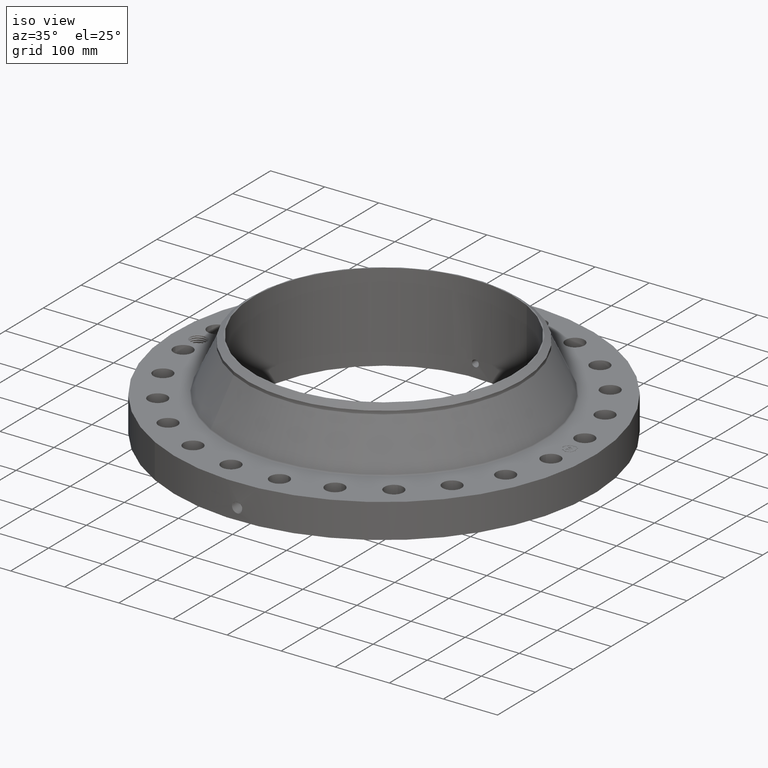
[diagram: clean part render]
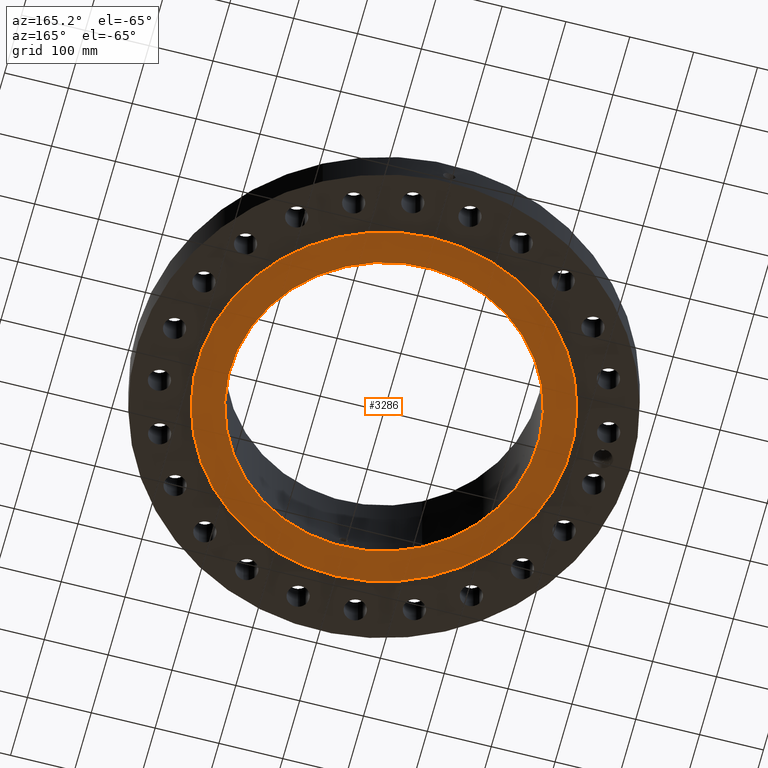
[diagram: tour spotlight — one face highlighted and labeled with its STEP entity id]
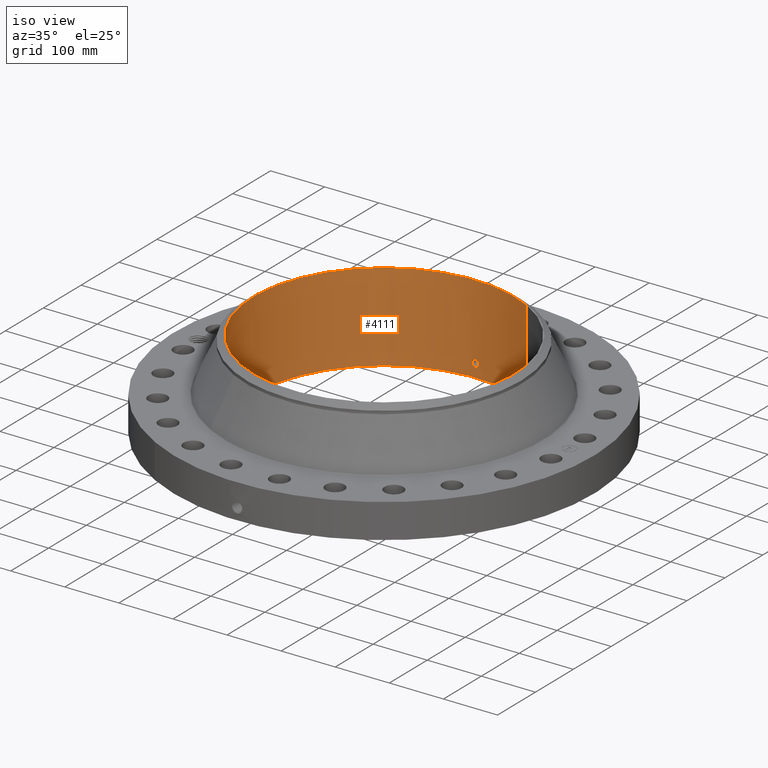
[diagram: tour spotlight — one face highlighted and labeled with its STEP entity id]
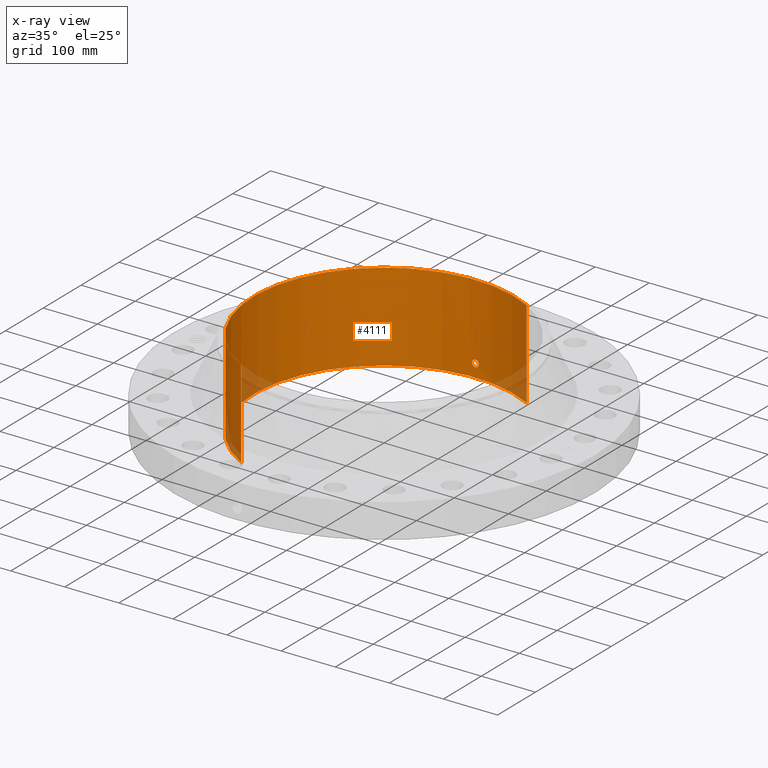
[diagram: x-ray of the same camera — body ghosted, this tour face saturated]
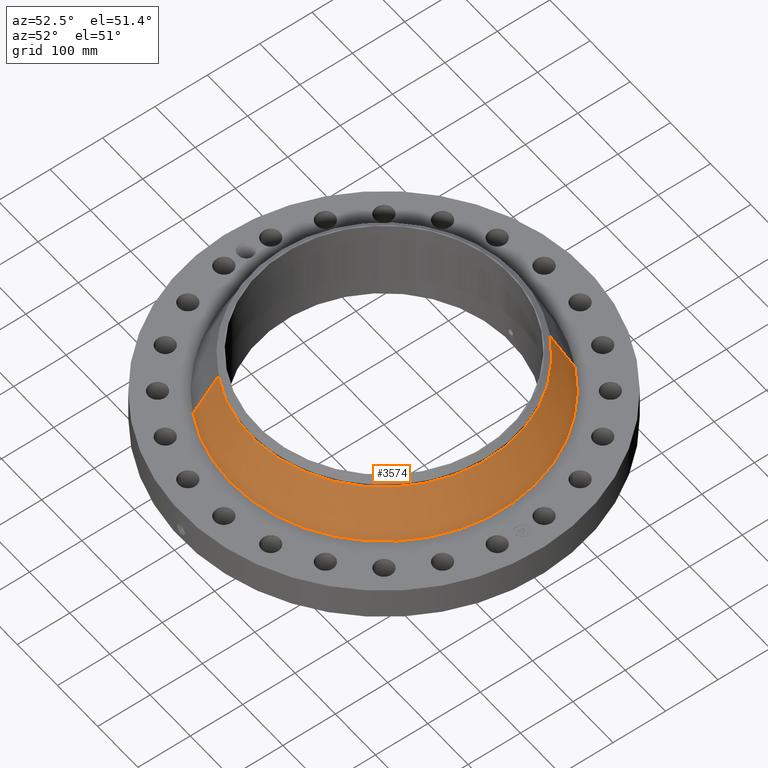
[diagram: tour spotlight — one face highlighted and labeled with its STEP entity id]
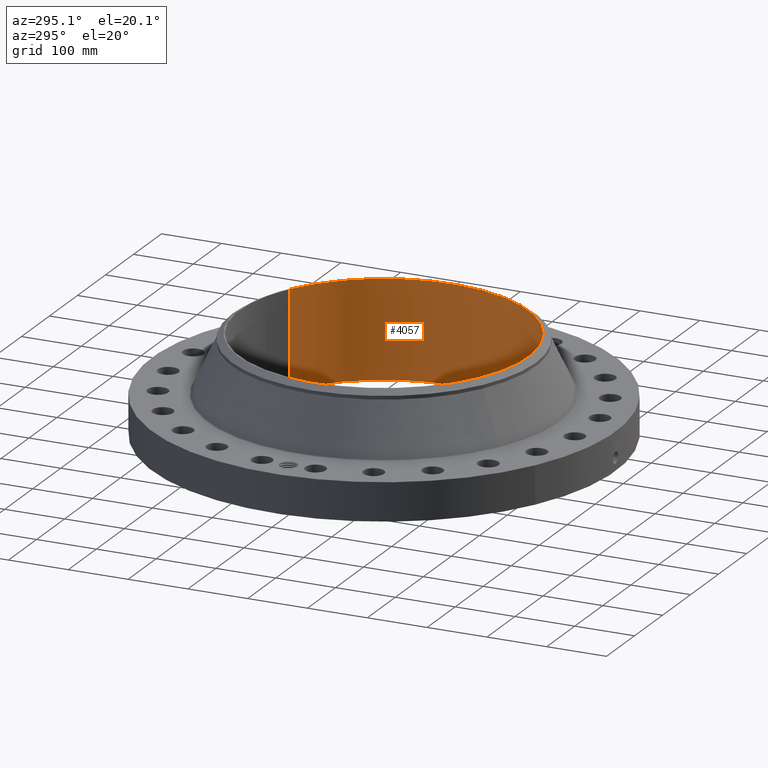
[diagram: tour spotlight — one face highlighted and labeled with its STEP entity id]
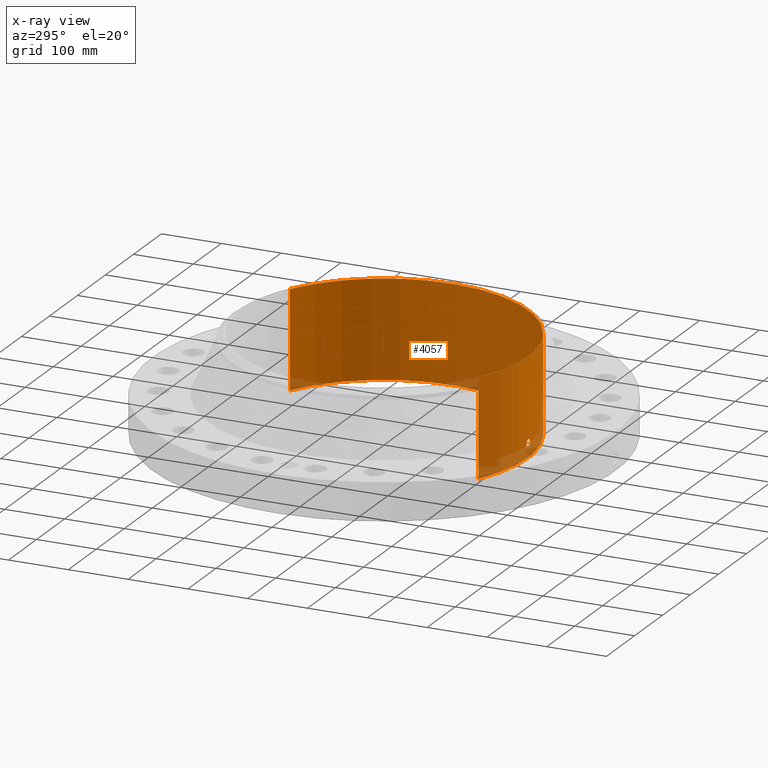
[diagram: x-ray of the same camera — body ghosted, this tour face saturated]
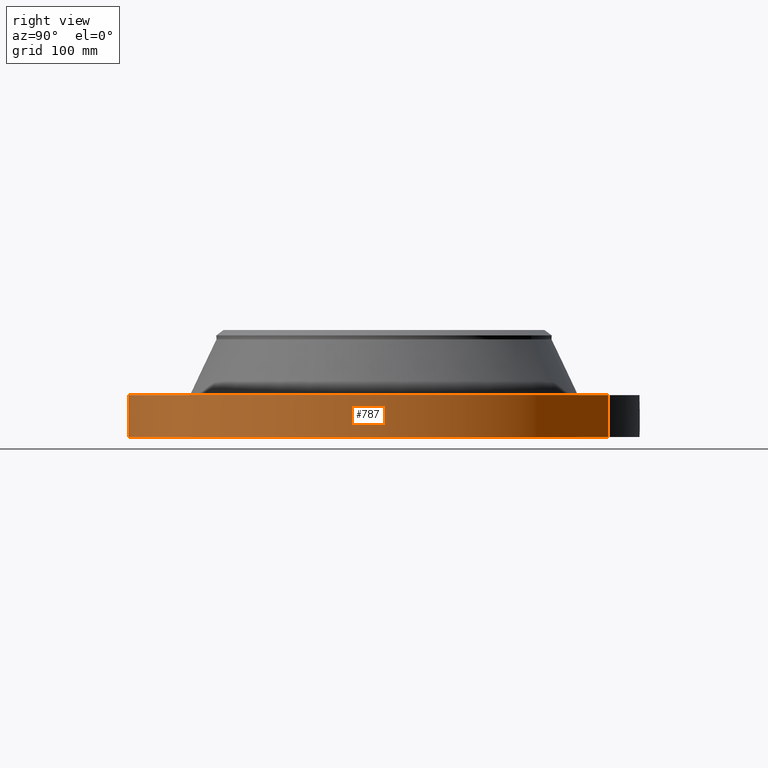
[diagram: tour spotlight — one face highlighted and labeled with its STEP entity id]
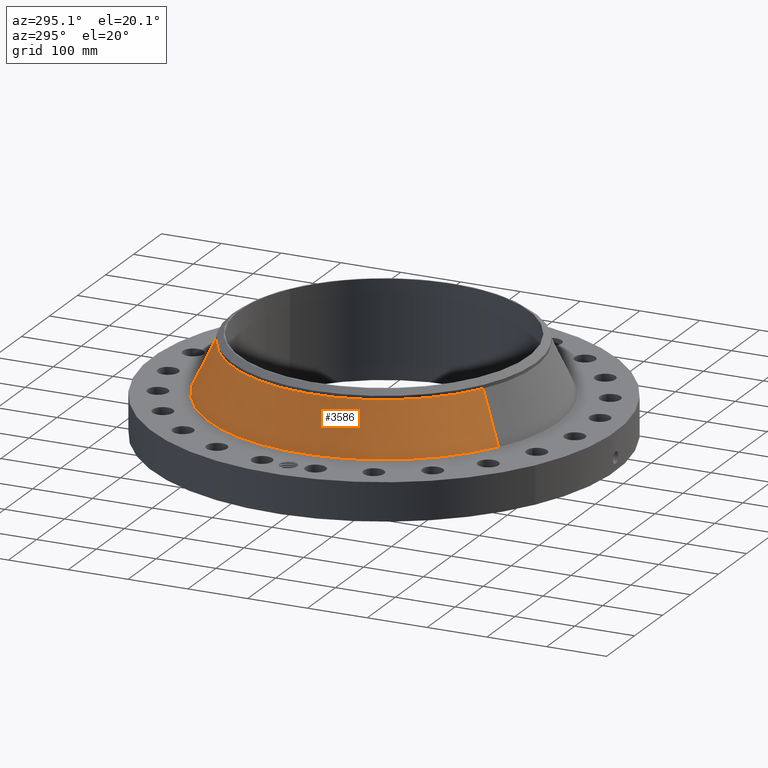
[diagram: tour spotlight — one face highlighted and labeled with its STEP entity id]
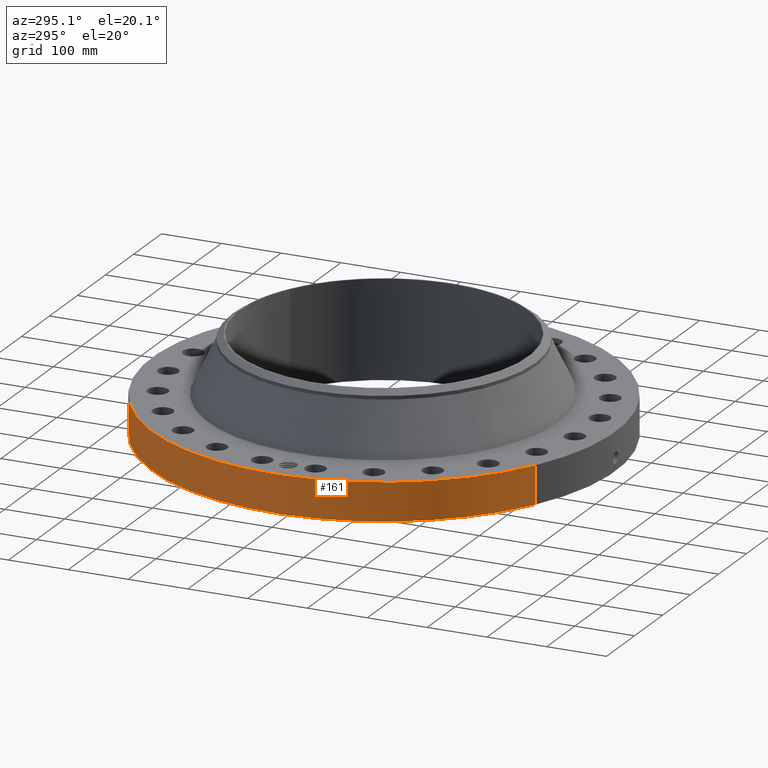
[diagram: tour spotlight — one face highlighted and labeled with its STEP entity id]
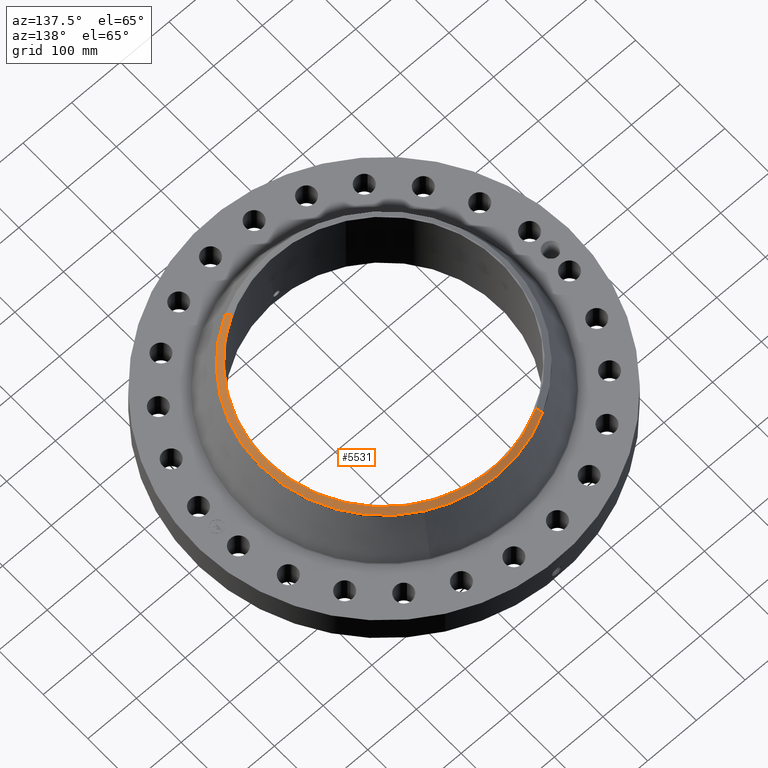
[diagram: tour spotlight — one face highlighted and labeled with its STEP entity id]
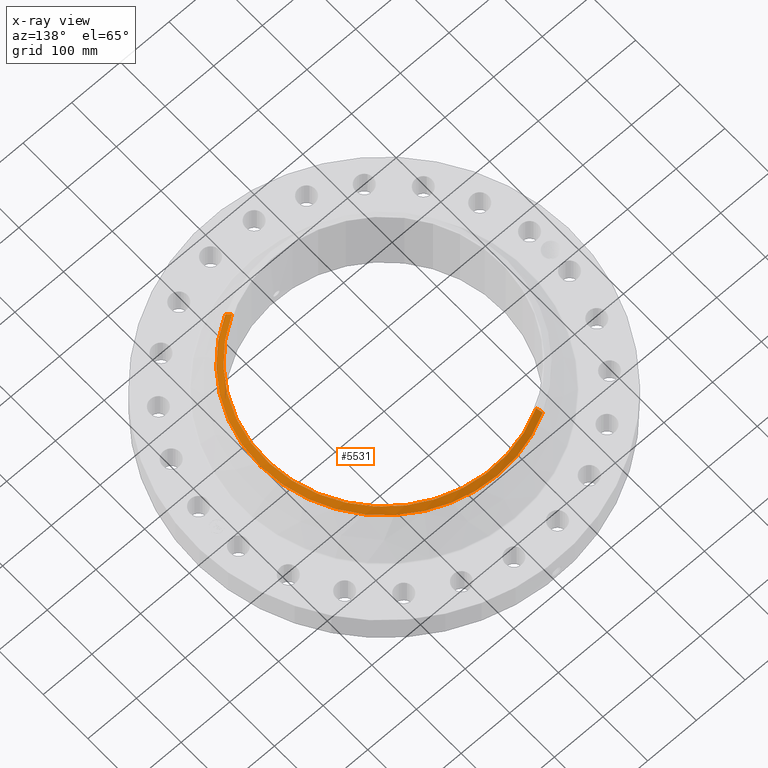
[diagram: x-ray of the same camera — body ghosted, this tour face saturated]
A machine part: a face-by-face anatomy tour. The part has 818 B-rep faces; the first image is the clean iso view, then the 8 largest visible faces are spotlighted one at a time (largest first), each with its STEP entity span.

Face 1 — auxiliary view, entity #3286. In plain terms, the highlighted planar face has unit normal (0, 0, -1).
Definition (entity closure, byte-faithful):
#1744=AXIS2_PLACEMENT_3D('Circle Axis2P3D',#1742,#1743,$) ;
#1770=AXIS2_PLACEMENT_3D('Circle Axis2P3D',#1768,#1769,$) ;
#3262=AXIS2_PLACEMENT_3D('Plane Axis2P3D',#3259,#3260,#3261) ;
#3270=AXIS2_PLACEMENT_3D('Circle Axis2P3D',#3268,#3269,$) ;
#3279=AXIS2_PLACEMENT_3D('Circle Axis2P3D',#3277,#3278,$) ;
#1742=CARTESIAN_POINT('Axis2P3D Location',(0.,0.,1.1189649382E-015)) ;
#1746=CARTESIAN_POINT('Vertex',(5.51339369397,10.0921994618,5.59482469102E-016)) ;
#1748=CARTESIAN_POINT('Vertex',(-5.51339369397,-10.0921994618,5.59482469102E-016)) ;
#1768=CARTESIAN_POINT('Axis2P3D Location',(0.,0.,1.1189649382E-015)) ;
#3259=CARTESIAN_POINT('Axis2P3D Location',(0.,9.50000000004,0.)) ;
#3268=CARTESIAN_POINT('Axis2P3D Location',(0.,0.,0.)) ;
#3272=CARTESIAN_POINT('Vertex',(4.55454261676,8.33703433799,-5.70672118484E-014)) ;
#3274=CARTESIAN_POINT('Vertex',(-4.55454261676,-8.33703433799,-5.70672118484E-014)) ;
#3277=CARTESIAN_POINT('Axis2P3D Location',(0.,0.,0.)) ;
#1743=DIRECTION('Axis2P3D Direction',(0.,0.,-0.0393700787402)) ;
#1769=DIRECTION('Axis2P3D Direction',(0.,0.,-0.0393700787402)) ;
#3260=DIRECTION('Axis2P3D Direction',(0.,0.,-0.0393700787402)) ;
#3261=DIRECTION('Axis2P3D XDirection',(0.0393700787402,0.,0.)) ;
#3269=DIRECTION('Axis2P3D Direction',(0.,0.,-0.0393700787402)) ;
#3278=DIRECTION('Axis2P3D Direction',(0.,0.,-0.0393700787402)) ;
#3265=ORIENTED_EDGE('',*,*,#1772,.T.) ;
#3266=ORIENTED_EDGE('',*,*,#1750,.T.) ;
#3283=ORIENTED_EDGE('',*,*,#3276,.F.) ;
#3284=ORIENTED_EDGE('',*,*,#3281,.F.) ;
#3285=FACE_BOUND('',#3282,.T.) ;
#3286=ADVANCED_FACE('PartBody',(#3267,#3285),#3263,.T.) ;
#1745=CIRCLE('generated circle',#1744,11.5) ;
#1771=CIRCLE('generated circle',#1770,11.5) ;
#3271=CIRCLE('generated circle',#3270,9.50000000004) ;
#3280=CIRCLE('generated circle',#3279,9.50000000004) ;
#1750=EDGE_CURVE('',#1747,#1749,#1745,.T.) ;
#1772=EDGE_CURVE('',#1749,#1747,#1771,.T.) ;
#3276=EDGE_CURVE('',#3273,#3275,#3271,.T.) ;
#3281=EDGE_CURVE('',#3275,#3273,#3280,.T.) ;
#3264=EDGE_LOOP('',(#3265,#3266)) ;
#3282=EDGE_LOOP('',(#3283,#3284)) ;
#3267=FACE_OUTER_BOUND('',#3264,.T.) ;
#3263=PLANE('',#3262) ;
#1747=VERTEX_POINT('',#1746) ;
#1749=VERTEX_POINT('',#1748) ;
#3273=VERTEX_POINT('',#3272) ;
#3275=VERTEX_POINT('',#3274) ;

Face 2 — iso view, entity #4111. An x-ray twin of the same camera follows (body ghosted, this face saturated) — the face is partly hidden behind the body. In plain terms, the highlighted cylindrical surface (partial cylindrical patch) has radius 241.3 mm, axis along (0, 0, -1).
Definition (entity closure, byte-faithful):
#3279=AXIS2_PLACEMENT_3D('Circle Axis2P3D',#3277,#3278,$) ;
#3988=AXIS2_PLACEMENT_3D('Cylinder Axis2P3D',#3985,#3986,#3987) ;
#4060=AXIS2_PLACEMENT_3D('Circle Axis2P3D',#4058,#4059,$) ;
#3272=CARTESIAN_POINT('Vertex',(4.55454261676,8.33703433799,-5.70672118484E-014)) ;
#3274=CARTESIAN_POINT('Vertex',(-4.55454261676,-8.33703433799,-5.70672118484E-014)) ;
#3277=CARTESIAN_POINT('Axis2P3D Location',(0.,0.,0.)) ;
#3985=CARTESIAN_POINT('Axis2P3D Location',(0.,0.,3.22000000001)) ;
#3994=CARTESIAN_POINT('Vertex',(4.55454261676,8.33703433799,6.44000000003)) ;
#3996=CARTESIAN_POINT('Vertex',(-4.55454261676,-8.33703433799,6.44000000003)) ;
#3999=CARTESIAN_POINT('Line Origine',(4.55454261676,8.33703433799,3.22000000001)) ;
#4004=CARTESIAN_POINT('Line Origine',(-4.55454261676,-8.33703433799,3.22000000001)) ;
#4058=CARTESIAN_POINT('Axis2P3D Location',(0.,0.,6.44000000003)) ;
#4070=CARTESIAN_POINT('Control Point',(0.219395640473,9.4974662702,1.05985638466)) ;
#4071=CARTESIAN_POINT('Control Point',(0.194442935999,9.49804268863,1.10553200382)) ;
#4072=CARTESIAN_POINT('Control Point',(0.157604874717,9.49881167245,1.14471210688)) ;
#4073=CARTESIAN_POINT('Control Point',(0.111106986346,9.49955955235,1.17324351808)) ;
#4074=CARTESIAN_POINT('Control Point',(0.0336717783172,9.50015458293,1.19588281264)) ;
#4075=CARTESIAN_POINT('Control Point',(-0.0446730370339,9.49994894621,1.18805610377)) ;
#4076=CARTESIAN_POINT('Control Point',(-0.0703033492336,9.49978931029,1.18204313534)) ;
#4077=CARTESIAN_POINT('Control Point',(-0.143960170574,9.49908388344,1.15420983012)) ;
#4078=CARTESIAN_POINT('Control Point',(-0.20324820544,9.49793246426,1.09949287888)) ;
#4079=CARTESIAN_POINT('Control Point',(-0.232212656333,9.4971773108,1.0532520476)) ;
#4080=CARTESIAN_POINT('Control Point',(-0.25584102018,9.49655659169,0.975105963714)) ;
#4081=CARTESIAN_POINT('Control Point',(-0.248281876038,9.49675500837,0.895743006143)) ;
#4082=CARTESIAN_POINT('Control Point',(-0.24204812098,9.49692100883,0.86918196536)) ;
#4083=CARTESIAN_POINT('Control Point',(-0.23231491871,9.4971678292,0.843792195537)) ;
#4084=CARTESIAN_POINT('Control Point',(-0.219395640473,9.4974662702,0.820143615352)) ;
#4085=CARTESIAN_POINT('Vertex',(0.219395640473,9.4974662702,1.05985638466)) ;
#4087=CARTESIAN_POINT('Vertex',(-0.219395640473,9.4974662702,0.820143615352)) ;
#4091=CARTESIAN_POINT('Control Point',(-0.219395640473,9.4974662702,0.820143615352)) ;
#4092=CARTESIAN_POINT('Control Point',(-0.194442935986,9.49804268863,0.774467996164)) ;
#4093=CARTESIAN_POINT('Control Point',(-0.157604874679,9.49881167245,0.735287893082)) ;
#4094=CARTESIAN_POINT('Control Point',(-0.111106986401,9.49955955235,0.706756481942)) ;
#4095=CARTESIAN_POINT('Control Point',(-0.0336717783396,9.50015458293,0.684117187368)) ;
#4096=CARTESIAN_POINT('Control Point',(0.0446730370458,9.49994894621,0.691943896236)) ;
#4097=CARTESIAN_POINT('Control Point',(0.0703033492185,9.49978931029,0.697956864664)) ;
#4098=CARTESIAN_POINT('Control Point',(0.143960170567,9.49908388344,0.725790169882)) ;
#4099=CARTESIAN_POINT('Control Point',(0.203248205438,9.49793246426,0.780507121124)) ;
#4100=CARTESIAN_POINT('Control Point',(0.232212656332,9.4971773108,0.826747952405)) ;
#4101=CARTESIAN_POINT('Control Point',(0.255841020167,9.49655659169,0.904894036251)) ;
#4102=CARTESIAN_POINT('Control Point',(0.248281876046,9.49675500837,0.98425699378)) ;
#4103=CARTESIAN_POINT('Control Point',(0.242048120951,9.49692100883,1.01081803472)) ;
#4104=CARTESIAN_POINT('Control Point',(0.23231491869,9.49716782921,1.03620780451)) ;
#4105=CARTESIAN_POINT('Control Point',(0.219395640473,9.4974662702,1.05985638466)) ;
#3278=DIRECTION('Axis2P3D Direction',(0.,0.,-0.0393700787402)) ;
#3986=DIRECTION('Axis2P3D Direction',(0.,0.,-0.0393700787402)) ;
#3987=DIRECTION('Axis2P3D XDirection',(-0.0188750212049,-0.0345504945626,0.)) ;
#4000=DIRECTION('Vector Direction',(0.,0.,-0.0393700787402)) ;
#4005=DIRECTION('Vector Direction',(0.,0.,-0.0393700787402)) ;
#4059=DIRECTION('Axis2P3D Direction',(0.,0.,-0.0393700787402)) ;
#4001=VECTOR('Line Direction',#4000,0.0393700787402) ;
#4006=VECTOR('Line Direction',#4005,0.0393700787402) ;
#4064=ORIENTED_EDGE('',*,*,#4062,.F.) ;
#4065=ORIENTED_EDGE('',*,*,#4008,.T.) ;
#4066=ORIENTED_EDGE('',*,*,#3281,.T.) ;
#4067=ORIENTED_EDGE('',*,*,#4003,.F.) ;
#4108=ORIENTED_EDGE('',*,*,#4089,.F.) ;
#4109=ORIENTED_EDGE('',*,*,#4106,.F.) ;
#4110=FACE_BOUND('',#4107,.T.) ;
#4111=ADVANCED_FACE('PartBody',(#4068,#4110),#3989,.F.) ;
#4069=B_SPLINE_CURVE_WITH_KNOTS('',5,(#4070,#4071,#4072,#4073,#4074,#4075,#4076,#4077,#4078,#4079,#4080,#4081,#4082,#4083,#4084),.UNSPECIFIED.,.F.,.U.,(6,3,3,3,6),(0.,9.34849735453,14.022916041,23.372956192,28.2131465022),.UNSPECIFIED.) ;
#4090=B_SPLINE_CURVE_WITH_KNOTS('',5,(#4091,#4092,#4093,#4094,#4095,#4096,#4097,#4098,#4099,#4100,#4101,#4102,#4103,#4104,#4105),.UNSPECIFIED.,.F.,.U.,(6,3,3,3,6),(0.,9.34849735935,14.022916047,23.3729561979,28.2131465009),.UNSPECIFIED.) ;
#3280=CIRCLE('generated circle',#3279,9.50000000004) ;
#4061=CIRCLE('generated circle',#4060,9.50000000004) ;
#3989=CYLINDRICAL_SURFACE('generated cylinder',#3988,9.50000000004) ;
#3281=EDGE_CURVE('',#3275,#3273,#3280,.T.) ;
#4003=EDGE_CURVE('',#3995,#3273,#4002,.T.) ;
#4008=EDGE_CURVE('',#3997,#3275,#4007,.T.) ;
#4062=EDGE_CURVE('',#3997,#3995,#4061,.T.) ;
#4089=EDGE_CURVE('',#4086,#4088,#4069,.T.) ;
#4106=EDGE_CURVE('',#4088,#4086,#4090,.T.) ;
#4063=EDGE_LOOP('',(#4064,#4065,#4066,#4067)) ;
#4107=EDGE_LOOP('',(#4108,#4109)) ;
#4068=FACE_OUTER_BOUND('',#4063,.T.) ;
#4002=LINE('Line',#3999,#4001) ;
#4007=LINE('Line',#4004,#4006) ;
#3273=VERTEX_POINT('',#3272) ;
#3275=VERTEX_POINT('',#3274) ;
#3995=VERTEX_POINT('',#3994) ;
#3997=VERTEX_POINT('',#3996) ;
#4086=VERTEX_POINT('',#4085) ;
#4088=VERTEX_POINT('',#4087) ;

Face 3 — auxiliary view, entity #3574. In plain terms, the highlighted conical surface has half-angle 25.164 deg.
Definition (entity closure, byte-faithful):
#2853=AXIS2_PLACEMENT_3D('Circle Axis2P3D',#2851,#2852,$) ;
#3547=AXIS2_PLACEMENT_3D('Cone Axis2P3D',#3544,#3545,#3546) ;
#3558=AXIS2_PLACEMENT_3D('Circle Axis2P3D',#3556,#3557,$) ;
#2848=CARTESIAN_POINT('Vertex',(5.52662377677,10.1164169659,2.62897412282)) ;
#2851=CARTESIAN_POINT('Axis2P3D Location',(0.,0.,2.62897412282)) ;
#2855=CARTESIAN_POINT('Vertex',(-5.52662377677,-10.1164169659,2.62897412282)) ;
#3544=CARTESIAN_POINT('Axis2P3D Location',(0.,0.,5.88053548147)) ;
#3549=CARTESIAN_POINT('Line Origine',(5.16043958142,9.44612129242,4.25475480215)) ;
#3553=CARTESIAN_POINT('Vertex',(4.79425538606,8.77582561894,5.88053548147)) ;
#3556=CARTESIAN_POINT('Axis2P3D Location',(0.,0.,5.88053548147)) ;
#3560=CARTESIAN_POINT('Vertex',(-4.79425538606,-8.77582561894,5.88053548147)) ;
#3563=CARTESIAN_POINT('Line Origine',(-5.16043958142,-9.44612129242,4.25475480215)) ;
#2852=DIRECTION('Axis2P3D Direction',(0.,0.,-0.0393700787402)) ;
#3545=DIRECTION('Axis2P3D Direction',(0.,0.,-0.0393700787402)) ;
#3546=DIRECTION('Axis2P3D XDirection',(-0.0188750212049,-0.0345504945626,0.)) ;
#3550=DIRECTION('Vector Direction',(0.00802595428238,0.0146914107689,-0.0356335460975)) ;
#3557=DIRECTION('Axis2P3D Direction',(0.,0.,-0.0393700787402)) ;
#3564=DIRECTION('Vector Direction',(-0.00802595428238,-0.0146914107689,-0.0356335460975)) ;
#3551=VECTOR('Line Direction',#3550,0.0393700787402) ;
#3565=VECTOR('Line Direction',#3564,0.0393700787402) ;
#3569=ORIENTED_EDGE('',*,*,#2857,.F.) ;
#3570=ORIENTED_EDGE('',*,*,#3555,.T.) ;
#3571=ORIENTED_EDGE('',*,*,#3562,.T.) ;
#3572=ORIENTED_EDGE('',*,*,#3567,.F.) ;
#3574=ADVANCED_FACE('PartBody',(#3573),#3548,.T.) ;
#2854=CIRCLE('generated circle',#2853,11.5275956989) ;
#3559=CIRCLE('generated circle',#3558,10.) ;
#3548=CONICAL_SURFACE('Cone',#3547,10.,0.439200127838) ;
#2857=EDGE_CURVE('',#2849,#2856,#2854,.T.) ;
#3555=EDGE_CURVE('',#2849,#3554,#3552,.F.) ;
#3562=EDGE_CURVE('',#3554,#3561,#3559,.T.) ;
#3567=EDGE_CURVE('',#2856,#3561,#3566,.F.) ;
#3568=EDGE_LOOP('',(#3569,#3570,#3571,#3572)) ;
#3573=FACE_OUTER_BOUND('',#3568,.T.) ;
#3552=LINE('Line',#3549,#3551) ;
#3566=LINE('Line',#3563,#3565) ;
#2849=VERTEX_POINT('',#2848) ;
#2856=VERTEX_POINT('',#2855) ;
#3554=VERTEX_POINT('',#3553) ;
#3561=VERTEX_POINT('',#3560) ;

Face 4 — auxiliary view, entity #4057. An x-ray twin of the same camera follows (body ghosted, this face saturated) — the face is partly hidden behind the body. In plain terms, the highlighted cylindrical surface (partial cylindrical patch) has radius 241.3 mm, axis along (0, 0, -1).
Definition (entity closure, byte-faithful):
#3270=AXIS2_PLACEMENT_3D('Circle Axis2P3D',#3268,#3269,$) ;
#3988=AXIS2_PLACEMENT_3D('Cylinder Axis2P3D',#3985,#3986,#3987) ;
#3992=AXIS2_PLACEMENT_3D('Circle Axis2P3D',#3990,#3991,$) ;
#3268=CARTESIAN_POINT('Axis2P3D Location',(0.,0.,0.)) ;
#3272=CARTESIAN_POINT('Vertex',(4.55454261676,8.33703433799,-5.70672118484E-014)) ;
#3274=CARTESIAN_POINT('Vertex',(-4.55454261676,-8.33703433799,-5.70672118484E-014)) ;
#3985=CARTESIAN_POINT('Axis2P3D Location',(0.,0.,3.22000000001)) ;
#3990=CARTESIAN_POINT('Axis2P3D Location',(0.,0.,6.44000000003)) ;
#3994=CARTESIAN_POINT('Vertex',(4.55454261676,8.33703433799,6.44000000003)) ;
#3996=CARTESIAN_POINT('Vertex',(-4.55454261676,-8.33703433799,6.44000000003)) ;
#3999=CARTESIAN_POINT('Line Origine',(4.55454261676,8.33703433799,3.22000000001)) ;
#4004=CARTESIAN_POINT('Line Origine',(-4.55454261676,-8.33703433799,3.22000000001)) ;
#4016=CARTESIAN_POINT('Control Point',(0.219395640473,-9.4974662702,0.820143615352)) ;
#4017=CARTESIAN_POINT('Control Point',(0.194442935972,-9.49804268863,0.774467996138)) ;
#4018=CARTESIAN_POINT('Control Point',(0.157604874637,-9.49881167245,0.735287893038)) ;
#4019=CARTESIAN_POINT('Control Point',(0.111106986342,-9.49955955236,0.706756481904)) ;
#4020=CARTESIAN_POINT('Control Point',(0.0336717782563,-9.50015458293,0.684117187352)) ;
#4021=CARTESIAN_POINT('Control Point',(-0.0446730371378,-9.49994894621,0.691943896255)) ;
#4022=CARTESIAN_POINT('Control Point',(-0.0703033493734,-9.49978931029,0.697956864711)) ;
#4023=CARTESIAN_POINT('Control Point',(-0.143960170671,-9.49908388343,0.725790169961)) ;
#4024=CARTESIAN_POINT('Control Point',(-0.203248205492,-9.49793246426,0.780507121202)) ;
#4025=CARTESIAN_POINT('Control Point',(-0.2322126564,-9.49717731079,0.826747952558)) ;
#4026=CARTESIAN_POINT('Control Point',(-0.255841020182,-9.49655659169,0.904894036394)) ;
#4027=CARTESIAN_POINT('Control Point',(-0.248281876025,-9.49675500838,0.984256993896)) ;
#4028=CARTESIAN_POINT('Control Point',(-0.242048120947,-9.49692100883,1.01081803473)) ;
#4029=CARTESIAN_POINT('Control Point',(-0.232314918688,-9.49716782921,1.03620780451)) ;
#4030=CARTESIAN_POINT('Control Point',(-0.219395640473,-9.4974662702,1.05985638466)) ;
#4031=CARTESIAN_POINT('Vertex',(0.219395640473,-9.4974662702,0.820143615352)) ;
#4033=CARTESIAN_POINT('Vertex',(-0.219395640473,-9.4974662702,1.05985638466)) ;
#4037=CARTESIAN_POINT('Control Point',(-0.219395640473,-9.4974662702,1.05985638466)) ;
#4038=CARTESIAN_POINT('Control Point',(-0.194442935972,-9.49804268863,1.10553200387)) ;
#4039=CARTESIAN_POINT('Control Point',(-0.157604874637,-9.49881167245,1.14471210697)) ;
#4040=CARTESIAN_POINT('Control Point',(-0.111106986342,-9.49955955236,1.1732435181)) ;
#4041=CARTESIAN_POINT('Control Point',(-0.0336717782525,-9.50015458293,1.19588281266)) ;
#4042=CARTESIAN_POINT('Control Point',(0.0446730371464,-9.49994894621,1.18805610375)) ;
#4043=CARTESIAN_POINT('Control Point',(0.0703033493635,-9.49978931029,1.1820431353)) ;
#4044=CARTESIAN_POINT('Control Point',(0.143960170739,-9.49908388343,1.15420983002)) ;
#4045=CARTESIAN_POINT('Control Point',(0.203248205608,-9.49793246426,1.0994928787)) ;
#4046=CARTESIAN_POINT('Control Point',(0.232212656355,-9.49717731079,1.0532520476)) ;
#4047=CARTESIAN_POINT('Control Point',(0.255841020188,-9.49655659169,0.975105963691)) ;
#4048=CARTESIAN_POINT('Control Point',(0.248281876025,-9.49675500838,0.895743006112)) ;
#4049=CARTESIAN_POINT('Control Point',(0.242048120947,-9.49692100883,0.869181965274)) ;
#4050=CARTESIAN_POINT('Control Point',(0.232314918688,-9.49716782921,0.843792195497)) ;
#4051=CARTESIAN_POINT('Control Point',(0.219395640473,-9.4974662702,0.820143615352)) ;
#3269=DIRECTION('Axis2P3D Direction',(0.,0.,-0.0393700787402)) ;
#3986=DIRECTION('Axis2P3D Direction',(0.,0.,-0.0393700787402)) ;
#3987=DIRECTION('Axis2P3D XDirection',(-0.0188750212049,-0.0345504945626,0.)) ;
#3991=DIRECTION('Axis2P3D Direction',(0.,0.,-0.0393700787402)) ;
#4000=DIRECTION('Vector Direction',(0.,0.,-0.0393700787402)) ;
#4005=DIRECTION('Vector Direction',(0.,0.,-0.0393700787402)) ;
#4001=VECTOR('Line Direction',#4000,0.0393700787402) ;
#4006=VECTOR('Line Direction',#4005,0.0393700787402) ;
#4010=ORIENTED_EDGE('',*,*,#3998,.F.) ;
#4011=ORIENTED_EDGE('',*,*,#4003,.T.) ;
#4012=ORIENTED_EDGE('',*,*,#3276,.T.) ;
#4013=ORIENTED_EDGE('',*,*,#4008,.F.) ;
#4054=ORIENTED_EDGE('',*,*,#4035,.F.) ;
#4055=ORIENTED_EDGE('',*,*,#4052,.F.) ;
#4056=FACE_BOUND('',#4053,.T.) ;
#4057=ADVANCED_FACE('PartBody',(#4014,#4056),#3989,.F.) ;
#4015=B_SPLINE_CURVE_WITH_KNOTS('',5,(#4016,#4017,#4018,#4019,#4020,#4021,#4022,#4023,#4024,#4025,#4026,#4027,#4028,#4029,#4030),.UNSPECIFIED.,.F.,.U.,(6,3,3,3,6),(0.,9.3484973647,14.0229160493,23.372956197,28.213146499),.UNSPECIFIED.) ;
#4036=B_SPLINE_CURVE_WITH_KNOTS('',5,(#4037,#4038,#4039,#4040,#4041,#4042,#4043,#4044,#4045,#4046,#4047,#4048,#4049,#4050,#4051),.UNSPECIFIED.,.F.,.U.,(6,3,3,3,6),(0.,9.34849736466,14.0229160502,23.3729562116,28.2131465137),.UNSPECIFIED.) ;
#3271=CIRCLE('generated circle',#3270,9.50000000004) ;
#3993=CIRCLE('generated circle',#3992,9.50000000004) ;
#3989=CYLINDRICAL_SURFACE('generated cylinder',#3988,9.50000000004) ;
#3276=EDGE_CURVE('',#3273,#3275,#3271,.T.) ;
#3998=EDGE_CURVE('',#3995,#3997,#3993,.T.) ;
#4003=EDGE_CURVE('',#3995,#3273,#4002,.T.) ;
#4008=EDGE_CURVE('',#3997,#3275,#4007,.T.) ;
#4035=EDGE_CURVE('',#4032,#4034,#4015,.T.) ;
#4052=EDGE_CURVE('',#4034,#4032,#4036,.T.) ;
#4009=EDGE_LOOP('',(#4010,#4011,#4012,#4013)) ;
#4053=EDGE_LOOP('',(#4054,#4055)) ;
#4014=FACE_OUTER_BOUND('',#4009,.T.) ;
#4002=LINE('Line',#3999,#4001) ;
#4007=LINE('Line',#4004,#4006) ;
#3273=VERTEX_POINT('',#3272) ;
#3275=VERTEX_POINT('',#3274) ;
#3995=VERTEX_POINT('',#3994) ;
#3997=VERTEX_POINT('',#3996) ;
#4032=VERTEX_POINT('',#4031) ;
#4034=VERTEX_POINT('',#4033) ;

Face 5 — right view, entity #787. In plain terms, the highlighted cylindrical surface (partial cylindrical patch) has radius 387.35 mm, axis along (0, 0, -1).
Definition (entity closure, byte-faithful):
#38=AXIS2_PLACEMENT_3D('Cylinder Axis2P3D',#35,#36,#37) ;
#169=AXIS2_PLACEMENT_3D('Circle Axis2P3D',#167,#168,$) ;
#691=AXIS2_PLACEMENT_3D('Circle Axis2P3D',#689,#690,$) ;
#35=CARTESIAN_POINT('Axis2P3D Location',(0.,0.,3.22000000001)) ;
#44=CARTESIAN_POINT('Vertex',(-7.31123946374,-13.3831340689,0.0600000000002)) ;
#46=CARTESIAN_POINT('Vertex',(7.31123946374,13.3831340689,0.0600000000002)) ;
#49=CARTESIAN_POINT('Line Origine',(-7.31123946374,-13.3831340689,1.31000000001)) ;
#53=CARTESIAN_POINT('Vertex',(-7.31123946374,-13.3831340689,2.56000000001)) ;
#60=CARTESIAN_POINT('Vertex',(7.31123946374,13.3831340689,2.56000000001)) ;
#63=CARTESIAN_POINT('Line Origine',(7.31123946374,13.3831340689,1.31000000001)) ;
#167=CARTESIAN_POINT('Axis2P3D Location',(0.,0.,0.0600000000002)) ;
#689=CARTESIAN_POINT('Axis2P3D Location',(0.,0.,2.56000000001)) ;
#701=CARTESIAN_POINT('Control Point',(0.000716049766516,-15.2499999833,1.29411846129)) ;
#702=CARTESIAN_POINT('Control Point',(0.0189701072577,-15.2499991261,1.29408159437)) ;
#703=CARTESIAN_POINT('Control Point',(0.0372209751349,-15.2499652355,1.29262936671)) ;
#704=CARTESIAN_POINT('Control Point',(0.0552509399649,-15.2498999123,1.28977927812)) ;
#705=CARTESIAN_POINT('Vertex',(0.000715697200082,-15.2499999833,1.29411851055)) ;
#707=CARTESIAN_POINT('Vertex',(0.055242138106,-15.2499001965,1.28978068759)) ;
#711=CARTESIAN_POINT('Control Point',(0.0552420427631,-15.2498999445,1.28978014022)) ;
#712=CARTESIAN_POINT('Control Point',(0.0956981569489,-15.2497533942,1.28536268072)) ;
#713=CARTESIAN_POINT('Control Point',(0.13551652469,-15.2494419834,1.27358724127)) ;
#714=CARTESIAN_POINT('Control Point',(0.172195687342,-15.2490277935,1.25523274047)) ;
#715=CARTESIAN_POINT('Vertex',(0.172195687342,-15.2490277935,1.25523274047)) ;
#719=CARTESIAN_POINT('Control Point',(0.0310152642592,-15.2499684608,0.53118928844)) ;
#720=CARTESIAN_POINT('Control Point',(0.0961823380403,-15.2498359245,0.539436739135)) ;
#721=CARTESIAN_POINT('Control Point',(0.159294043544,-15.2493594722,0.561293751317)) ;
#722=CARTESIAN_POINT('Control Point',(0.216401137038,-15.2485887094,0.596098828625)) ;
#723=CARTESIAN_POINT('Control Point',(0.288819771739,-15.2473275345,0.664189975009)) ;
#724=CARTESIAN_POINT('Control Point',(0.33642839293,-15.2462994751,0.748671469604)) ;
#725=CARTESIAN_POINT('Control Point',(0.349472606068,-15.2460004619,0.778732970434)) ;
#726=CARTESIAN_POINT('Control Point',(0.371687708464,-15.2454753168,0.848970818041)) ;
#727=CARTESIAN_POINT('Control Point',(0.3771753729,-15.2453335918,0.92214120384)) ;
#728=CARTESIAN_POINT('Control Point',(0.374910288473,-15.2453911791,0.962947952497)) ;
#729=CARTESIAN_POINT('Control Point',(0.356496036619,-15.245851249,1.06072433243)) ;
#730=CARTESIAN_POINT('Control Point',(0.308136791892,-15.2469313731,1.14794325788)) ;
#731=CARTESIAN_POINT('Control Point',(0.269818079769,-15.2477093271,1.19323963339)) ;
#732=CARTESIAN_POINT('Control Point',(0.223535778771,-15.2484480489,1.2295418069)) ;
#733=CARTESIAN_POINT('Control Point',(0.172195687342,-15.2490277935,1.25523274047)) ;
#734=CARTESIAN_POINT('Vertex',(0.0310152642592,-15.2499684608,0.53118928844)) ;
#738=CARTESIAN_POINT('Control Point',(0.0310152642592,-15.2499684608,0.53118928844)) ;
#739=CARTESIAN_POINT('Control Point',(0.0206719752859,-15.2499894969,0.53087456983)) ;
#740=CARTESIAN_POINT('Control Point',(0.0103211166376,-15.2500000019,0.530936539703)) ;
#741=CARTESIAN_POINT('Control Point',(-2.72878354802E-006,-15.2500000001,0.531374667806)) ;
#742=CARTESIAN_POINT('Vertex',(-2.72878354471E-006,-15.2500000001,0.531374667806)) ;
#746=CARTESIAN_POINT('Control Point',(-0.192625061438,-15.2487834134,0.58741326924)) ;
#747=CARTESIAN_POINT('Control Point',(-0.149005457548,-15.2493344231,0.562040395754)) ;
#748=CARTESIAN_POINT('Control Point',(-0.101116386707,-15.2497737091,0.543779824756)) ;
#749=CARTESIAN_POINT('Control Point',(-0.0508056148569,-15.249999991,0.533530663288)) ;
#750=CARTESIAN_POINT('Control Point',(-2.72878354801E-006,-15.2500000001,0.531374667806)) ;
#751=CARTESIAN_POINT('Vertex',(-0.192625061438,-15.2487834134,0.58741326924)) ;
#755=CARTESIAN_POINT('Control Point',(-0.192625061438,-15.2487834134,0.58741326924)) ;
#756=CARTESIAN_POINT('Control Point',(-0.249453783234,-15.2480655439,0.620469689014)) ;
#757=CARTESIAN_POINT('Control Point',(-0.299509163564,-15.2471684596,0.664842822425)) ;
#758=CARTESIAN_POINT('Control Point',(-0.339645810447,-15.2462572537,0.718973028935)) ;
#759=CARTESIAN_POINT('Control Point',(-0.383846820921,-15.2451782415,0.817171323262)) ;
#760=CARTESIAN_POINT('Control Point',(-0.39239494855,-15.2449495023,0.92245643257)) ;
#761=CARTESIAN_POINT('Control Point',(-0.390268294798,-15.2450057477,0.96262107824)) ;
#762=CARTESIAN_POINT('Control Point',(-0.376095244235,-15.2453740937,1.03752589673)) ;
#763=CARTESIAN_POINT('Control Point',(-0.343961436356,-15.2461332323,1.10595638756)) ;
#764=CARTESIAN_POINT('Control Point',(-0.324884519482,-15.2465612243,1.13637813148)) ;
#765=CARTESIAN_POINT('Control Point',(-0.263167036672,-15.2478271655,1.21273609873)) ;
#766=CARTESIAN_POINT('Control Point',(-0.180082080052,-15.2490857223,1.26567044338)) ;
#767=CARTESIAN_POINT('Control Point',(-0.121355009528,-15.2497029237,1.28768574766)) ;
#768=CARTESIAN_POINT('Control Point',(-0.0601974085979,-15.2500001022,1.29710564982)) ;
#769=CARTESIAN_POINT('Control Point',(2.5857935532E-005,-15.25,1.2941529843)) ;
#770=CARTESIAN_POINT('Vertex',(2.58579355472E-005,-15.25,1.2941529843)) ;
#774=CARTESIAN_POINT('Control Point',(0.000715697190474,-15.2499999833,1.29411851054)) ;
#775=CARTESIAN_POINT('Control Point',(0.00037080210737,-15.2499999995,1.29413607216)) ;
#776=CARTESIAN_POINT('Control Point',(2.58579405796E-005,-15.25,1.2941529843)) ;
#36=DIRECTION('Axis2P3D Direction',(0.,0.,-0.0393700787402)) ;
#37=DIRECTION('Axis2P3D XDirection',(0.0188750212049,0.0345504945626,0.)) ;
#50=DIRECTION('Vector Direction',(0.,0.,-0.0393700787402)) ;
#64=DIRECTION('Vector Direction',(0.,0.,-0.0393700787402)) ;
#168=DIRECTION('Axis2P3D Direction',(0.,0.,-0.0393700787402)) ;
#690=DIRECTION('Axis2P3D Direction',(0.,0.,-0.0393700787402)) ;
#51=VECTOR('Line Direction',#50,0.0393700787402) ;
#65=VECTOR('Line Direction',#64,0.0393700787402) ;
#695=ORIENTED_EDGE('',*,*,#171,.F.) ;
#696=ORIENTED_EDGE('',*,*,#67,.T.) ;
#697=ORIENTED_EDGE('',*,*,#693,.T.) ;
#698=ORIENTED_EDGE('',*,*,#55,.F.) ;
#779=ORIENTED_EDGE('',*,*,#709,.T.) ;
#780=ORIENTED_EDGE('',*,*,#717,.T.) ;
#781=ORIENTED_EDGE('',*,*,#736,.F.) ;
#782=ORIENTED_EDGE('',*,*,#744,.T.) ;
#783=ORIENTED_EDGE('',*,*,#753,.F.) ;
#784=ORIENTED_EDGE('',*,*,#772,.T.) ;
#785=ORIENTED_EDGE('',*,*,#777,.F.) ;
#786=FACE_BOUND('',#778,.T.) ;
#787=ADVANCED_FACE('PartBody',(#699,#786),#39,.T.) ;
#700=B_SPLINE_CURVE_WITH_KNOTS('',3,(#701,#702,#703,#704),.UNSPECIFIED.,.F.,.U.,(4,4),(34.6166020533,36.6417164671),.UNSPECIFIED.) ;
#710=B_SPLINE_CURVE_WITH_KNOTS('',3,(#711,#712,#713,#714),.UNSPECIFIED.,.F.,.U.,(4,4),(0.,4.57283024597),.UNSPECIFIED.) ;
#718=B_SPLINE_CURVE_WITH_KNOTS('',5,(#719,#720,#721,#722,#723,#724,#725,#726,#727,#728,#729,#730,#731,#732,#733),.UNSPECIFIED.,.F.,.U.,(6,3,3,3,6),(0.,11.4156301248,17.2563856312,24.6134498977,35.281156705),.UNSPECIFIED.) ;
#737=B_SPLINE_CURVE_WITH_KNOTS('',3,(#738,#739,#740,#741),.UNSPECIFIED.,.F.,.U.,(4,4),(0.,1.07896259327),.UNSPECIFIED.) ;
#745=B_SPLINE_CURVE_WITH_KNOTS('',4,(#746,#747,#748,#749,#750),.UNSPECIFIED.,.F.,.U.,(5,5),(0.,7.07932769999),.UNSPECIFIED.) ;
#754=B_SPLINE_CURVE_WITH_KNOTS('',5,(#755,#756,#757,#758,#759,#760,#761,#762,#763,#764,#765,#766,#767,#768,#769),.UNSPECIFIED.,.F.,.U.,(6,3,3,3,6),(0.,11.5289086238,18.6079826497,25.0299917203,36.2869702165),.UNSPECIFIED.) ;
#773=B_SPLINE_CURVE_WITH_KNOTS('',2,(#774,#775,#776),.UNSPECIFIED.,.F.,.U.,(3,3),(1.021811413,1.04760230385),.UNSPECIFIED.) ;
#170=CIRCLE('generated circle',#169,15.2500000001) ;
#692=CIRCLE('generated circle',#691,15.2500000001) ;
#39=CYLINDRICAL_SURFACE('generated cylinder',#38,15.2500000001) ;
#55=EDGE_CURVE('',#45,#54,#52,.F.) ;
#67=EDGE_CURVE('',#47,#61,#66,.F.) ;
#171=EDGE_CURVE('',#47,#45,#170,.T.) ;
#693=EDGE_CURVE('',#61,#54,#692,.T.) ;
#709=EDGE_CURVE('',#706,#708,#700,.T.) ;
#717=EDGE_CURVE('',#708,#716,#710,.T.) ;
#736=EDGE_CURVE('',#735,#716,#718,.T.) ;
#744=EDGE_CURVE('',#735,#743,#737,.T.) ;
#753=EDGE_CURVE('',#752,#743,#745,.T.) ;
#772=EDGE_CURVE('',#752,#771,#754,.T.) ;
#777=EDGE_CURVE('',#706,#771,#773,.T.) ;
#694=EDGE_LOOP('',(#695,#696,#697,#698)) ;
#778=EDGE_LOOP('',(#779,#780,#781,#782,#783,#784,#785)) ;
#699=FACE_OUTER_BOUND('',#694,.T.) ;
#52=LINE('Line',#49,#51) ;
#66=LINE('Line',#63,#65) ;
#45=VERTEX_POINT('',#44) ;
#47=VERTEX_POINT('',#46) ;
#54=VERTEX_POINT('',#53) ;
#61=VERTEX_POINT('',#60) ;
#706=VERTEX_POINT('',#705) ;
#708=VERTEX_POINT('',#707) ;
#716=VERTEX_POINT('',#715) ;
#735=VERTEX_POINT('',#734) ;
#743=VERTEX_POINT('',#742) ;
#752=VERTEX_POINT('',#751) ;
#771=VERTEX_POINT('',#770) ;

Face 6 — auxiliary view, entity #3586. In plain terms, the highlighted conical surface has half-angle 25.164 deg.
Definition (entity closure, byte-faithful):
#2872=AXIS2_PLACEMENT_3D('Circle Axis2P3D',#2870,#2871,$) ;
#3547=AXIS2_PLACEMENT_3D('Cone Axis2P3D',#3544,#3545,#3546) ;
#3577=AXIS2_PLACEMENT_3D('Circle Axis2P3D',#3575,#3576,$) ;
#2848=CARTESIAN_POINT('Vertex',(5.52662377677,10.1164169659,2.62897412282)) ;
#2855=CARTESIAN_POINT('Vertex',(-5.52662377677,-10.1164169659,2.62897412282)) ;
#2870=CARTESIAN_POINT('Axis2P3D Location',(0.,0.,2.62897412282)) ;
#3544=CARTESIAN_POINT('Axis2P3D Location',(0.,0.,5.88053548147)) ;
#3549=CARTESIAN_POINT('Line Origine',(5.16043958142,9.44612129242,4.25475480215)) ;
#3553=CARTESIAN_POINT('Vertex',(4.79425538606,8.77582561894,5.88053548147)) ;
#3560=CARTESIAN_POINT('Vertex',(-4.79425538606,-8.77582561894,5.88053548147)) ;
#3563=CARTESIAN_POINT('Line Origine',(-5.16043958142,-9.44612129242,4.25475480215)) ;
#3575=CARTESIAN_POINT('Axis2P3D Location',(0.,0.,5.88053548147)) ;
#2871=DIRECTION('Axis2P3D Direction',(0.,0.,-0.0393700787402)) ;
#3545=DIRECTION('Axis2P3D Direction',(0.,0.,-0.0393700787402)) ;
#3546=DIRECTION('Axis2P3D XDirection',(-0.0188750212049,-0.0345504945626,0.)) ;
#3550=DIRECTION('Vector Direction',(0.00802595428238,0.0146914107689,-0.0356335460975)) ;
#3564=DIRECTION('Vector Direction',(-0.00802595428238,-0.0146914107689,-0.0356335460975)) ;
#3576=DIRECTION('Axis2P3D Direction',(0.,0.,-0.0393700787402)) ;
#3551=VECTOR('Line Direction',#3550,0.0393700787402) ;
#3565=VECTOR('Line Direction',#3564,0.0393700787402) ;
#3581=ORIENTED_EDGE('',*,*,#2874,.F.) ;
#3582=ORIENTED_EDGE('',*,*,#3567,.T.) ;
#3583=ORIENTED_EDGE('',*,*,#3579,.T.) ;
#3584=ORIENTED_EDGE('',*,*,#3555,.F.) ;
#3586=ADVANCED_FACE('PartBody',(#3585),#3548,.T.) ;
#2873=CIRCLE('generated circle',#2872,11.5275956989) ;
#3578=CIRCLE('generated circle',#3577,10.) ;
#3548=CONICAL_SURFACE('Cone',#3547,10.,0.439200127838) ;
#2874=EDGE_CURVE('',#2856,#2849,#2873,.T.) ;
#3555=EDGE_CURVE('',#2849,#3554,#3552,.F.) ;
#3567=EDGE_CURVE('',#2856,#3561,#3566,.F.) ;
#3579=EDGE_CURVE('',#3561,#3554,#3578,.T.) ;
#3580=EDGE_LOOP('',(#3581,#3582,#3583,#3584)) ;
#3585=FACE_OUTER_BOUND('',#3580,.T.) ;
#3552=LINE('Line',#3549,#3551) ;
#3566=LINE('Line',#3563,#3565) ;
#2849=VERTEX_POINT('',#2848) ;
#2856=VERTEX_POINT('',#2855) ;
#3554=VERTEX_POINT('',#3553) ;
#3561=VERTEX_POINT('',#3560) ;

Face 7 — auxiliary view, entity #161. In plain terms, the highlighted cylindrical surface (partial cylindrical patch) has radius 387.35 mm, axis along (0, 0, -1).
Definition (entity closure, byte-faithful):
#38=AXIS2_PLACEMENT_3D('Cylinder Axis2P3D',#35,#36,#37) ;
#42=AXIS2_PLACEMENT_3D('Circle Axis2P3D',#40,#41,$) ;
#58=AXIS2_PLACEMENT_3D('Circle Axis2P3D',#56,#57,$) ;
#35=CARTESIAN_POINT('Axis2P3D Location',(0.,0.,3.22000000001)) ;
#40=CARTESIAN_POINT('Axis2P3D Location',(0.,0.,0.0600000000002)) ;
#44=CARTESIAN_POINT('Vertex',(-7.31123946374,-13.3831340689,0.0600000000002)) ;
#46=CARTESIAN_POINT('Vertex',(7.31123946374,13.3831340689,0.0600000000002)) ;
#49=CARTESIAN_POINT('Line Origine',(-7.31123946374,-13.3831340689,1.31000000001)) ;
#53=CARTESIAN_POINT('Vertex',(-7.31123946374,-13.3831340689,2.56000000001)) ;
#56=CARTESIAN_POINT('Axis2P3D Location',(0.,0.,2.56000000001)) ;
#60=CARTESIAN_POINT('Vertex',(7.31123946374,13.3831340689,2.56000000001)) ;
#63=CARTESIAN_POINT('Line Origine',(7.31123946374,13.3831340689,1.31000000001)) ;
#75=CARTESIAN_POINT('Control Point',(-0.000716049760897,15.2499999833,1.29411846129)) ;
#76=CARTESIAN_POINT('Control Point',(-0.018970107258,15.2499991261,1.29408159437)) ;
#77=CARTESIAN_POINT('Control Point',(-0.0372209751282,15.2499652355,1.29262936671)) ;
#78=CARTESIAN_POINT('Control Point',(-0.0552509399607,15.2498999123,1.28977927812)) ;
#79=CARTESIAN_POINT('Vertex',(-0.000715697200087,15.2499999833,1.29411851055)) ;
#81=CARTESIAN_POINT('Vertex',(-0.055242138106,15.2499001965,1.28978068759)) ;
#85=CARTESIAN_POINT('Control Point',(-0.0552420427631,15.2498999445,1.28978014022)) ;
#86=CARTESIAN_POINT('Control Point',(-0.0956981569349,15.2497533942,1.28536268072)) ;
#87=CARTESIAN_POINT('Control Point',(-0.135516524703,15.2494419834,1.27358724126)) ;
#88=CARTESIAN_POINT('Control Point',(-0.172195687342,15.2490277935,1.25523274047)) ;
#89=CARTESIAN_POINT('Vertex',(-0.172195687342,15.2490277935,1.25523274047)) ;
#93=CARTESIAN_POINT('Control Point',(-0.0310152642592,15.2499684608,0.53118928844)) ;
#94=CARTESIAN_POINT('Control Point',(-0.0961823379132,15.2498359245,0.539436739119)) ;
#95=CARTESIAN_POINT('Control Point',(-0.159294043297,15.2493594722,0.561293751238)) ;
#96=CARTESIAN_POINT('Control Point',(-0.216401136741,15.2485887094,0.596098828452)) ;
#97=CARTESIAN_POINT('Control Point',(-0.288819771367,15.2473275345,0.664189974609)) ;
#98=CARTESIAN_POINT('Control Point',(-0.336428392603,15.2462994751,0.748671468951)) ;
#99=CARTESIAN_POINT('Control Point',(-0.349472605903,15.2460004619,0.778732970034)) ;
#100=CARTESIAN_POINT('Control Point',(-0.371687708327,15.2454753168,0.848970817425)) ;
#101=CARTESIAN_POINT('Control Point',(-0.377175372884,15.2453335918,0.922141203017)) ;
#102=CARTESIAN_POINT('Control Point',(-0.37491028849,15.2453911791,0.96294795216)) ;
#103=CARTESIAN_POINT('Control Point',(-0.356496036738,15.245851249,1.06072433215)) ;
#104=CARTESIAN_POINT('Control Point',(-0.308136792079,15.2469313731,1.14794325768)) ;
#105=CARTESIAN_POINT('Control Point',(-0.269818080012,15.2477093271,1.1932396332)) ;
#106=CARTESIAN_POINT('Control Point',(-0.223535778907,15.2484480489,1.22954180683)) ;
#107=CARTESIAN_POINT('Control Point',(-0.172195687342,15.2490277935,1.25523274047)) ;
#108=CARTESIAN_POINT('Vertex',(-0.0310152642592,15.2499684608,0.53118928844)) ;
#112=CARTESIAN_POINT('Control Point',(-0.0310152642592,15.2499684608,0.53118928844)) ;
#113=CARTESIAN_POINT('Control Point',(-0.0206719752859,15.2499894969,0.53087456983)) ;
#114=CARTESIAN_POINT('Control Point',(-0.0103211166376,15.2500000019,0.530936539703)) ;
#115=CARTESIAN_POINT('Control Point',(2.72878355969E-006,15.2500000001,0.531374667806)) ;
#116=CARTESIAN_POINT('Vertex',(2.72878354271E-006,15.2500000001,0.531374667806)) ;
#120=CARTESIAN_POINT('Control Point',(0.192625061438,15.2487834134,0.58741326924)) ;
#121=CARTESIAN_POINT('Control Point',(0.149005457583,15.2493344231,0.562040395774)) ;
#122=CARTESIAN_POINT('Control Point',(0.101116386692,15.2497737091,0.543779824758)) ;
#123=CARTESIAN_POINT('Control Point',(0.0508056148167,15.249999991,0.533530663287)) ;
#124=CARTESIAN_POINT('Control Point',(2.72878353261E-006,15.2500000001,0.531374667806)) ;
#125=CARTESIAN_POINT('Vertex',(0.192625061438,15.2487834134,0.58741326924)) ;
#129=CARTESIAN_POINT('Control Point',(0.192625061438,15.2487834134,0.58741326924)) ;
#130=CARTESIAN_POINT('Control Point',(0.249453783241,15.2480655439,0.620469689018)) ;
#131=CARTESIAN_POINT('Control Point',(0.299509163574,15.2471684596,0.664842822439)) ;
#132=CARTESIAN_POINT('Control Point',(0.339645810408,15.2462572537,0.718973028864)) ;
#133=CARTESIAN_POINT('Control Point',(0.383846820917,15.2451782415,0.817171323225)) ;
#134=CARTESIAN_POINT('Control Point',(0.392394948557,15.2449495023,0.92245643258)) ;
#135=CARTESIAN_POINT('Control Point',(0.39026829482,15.2450057477,0.962621078101)) ;
#136=CARTESIAN_POINT('Control Point',(0.376095244267,15.2453740937,1.03752589666)) ;
#137=CARTESIAN_POINT('Control Point',(0.343961436371,15.2461332323,1.10595638754)) ;
#138=CARTESIAN_POINT('Control Point',(0.324884519544,15.2465612243,1.13637813139)) ;
#139=CARTESIAN_POINT('Control Point',(0.263167036742,15.2478271655,1.21273609867)) ;
#140=CARTESIAN_POINT('Control Point',(0.180082080125,15.2490857223,1.26567044335)) ;
#141=CARTESIAN_POINT('Control Point',(0.121355009514,15.2497029237,1.28768574766)) ;
#142=CARTESIAN_POINT('Control Point',(0.0601974085909,15.2500001022,1.29710564982)) ;
#143=CARTESIAN_POINT('Control Point',(-2.58579355474E-005,15.25,1.2941529843)) ;
#144=CARTESIAN_POINT('Vertex',(-2.5857935549E-005,15.25,1.2941529843)) ;
#148=CARTESIAN_POINT('Control Point',(-0.000715697190492,15.2499999833,1.29411851054)) ;
#149=CARTESIAN_POINT('Control Point',(-0.000370802107379,15.2499999995,1.29413607216)) ;
#150=CARTESIAN_POINT('Control Point',(-2.58579405789E-005,15.25,1.2941529843)) ;
#36=DIRECTION('Axis2P3D Direction',(0.,0.,-0.0393700787402)) ;
#37=DIRECTION('Axis2P3D XDirection',(0.0188750212049,0.0345504945626,0.)) ;
#41=DIRECTION('Axis2P3D Direction',(0.,0.,-0.0393700787402)) ;
#50=DIRECTION('Vector Direction',(0.,0.,-0.0393700787402)) ;
#57=DIRECTION('Axis2P3D Direction',(0.,0.,-0.0393700787402)) ;
#64=DIRECTION('Vector Direction',(0.,0.,-0.0393700787402)) ;
#51=VECTOR('Line Direction',#50,0.0393700787402) ;
#65=VECTOR('Line Direction',#64,0.0393700787402) ;
#69=ORIENTED_EDGE('',*,*,#48,.F.) ;
#70=ORIENTED_EDGE('',*,*,#55,.T.) ;
#71=ORIENTED_EDGE('',*,*,#62,.T.) ;
#72=ORIENTED_EDGE('',*,*,#67,.F.) ;
#153=ORIENTED_EDGE('',*,*,#83,.T.) ;
#154=ORIENTED_EDGE('',*,*,#91,.T.) ;
#155=ORIENTED_EDGE('',*,*,#110,.F.) ;
#156=ORIENTED_EDGE('',*,*,#118,.T.) ;
#157=ORIENTED_EDGE('',*,*,#127,.F.) ;
#158=ORIENTED_EDGE('',*,*,#146,.T.) ;
#159=ORIENTED_EDGE('',*,*,#151,.F.) ;
#160=FACE_BOUND('',#152,.T.) ;
#161=ADVANCED_FACE('PartBody',(#73,#160),#39,.T.) ;
#74=B_SPLINE_CURVE_WITH_KNOTS('',3,(#75,#76,#77,#78),.UNSPECIFIED.,.F.,.U.,(4,4),(34.6166020456,36.6417164591),.UNSPECIFIED.) ;
#84=B_SPLINE_CURVE_WITH_KNOTS('',3,(#85,#86,#87,#88),.UNSPECIFIED.,.F.,.U.,(4,4),(0.,4.57283024439),.UNSPECIFIED.) ;
#92=B_SPLINE_CURVE_WITH_KNOTS('',5,(#93,#94,#95,#96,#97,#98,#99,#100,#101,#102,#103,#104,#105,#106,#107),.UNSPECIFIED.,.F.,.U.,(6,3,3,3,6),(0.,11.4156301025,17.2563855953,24.6134498398,35.2811566753),.UNSPECIFIED.) ;
#111=B_SPLINE_CURVE_WITH_KNOTS('',3,(#112,#113,#114,#115),.UNSPECIFIED.,.F.,.U.,(4,4),(0.,1.07896259327),.UNSPECIFIED.) ;
#119=B_SPLINE_CURVE_WITH_KNOTS('',4,(#120,#121,#122,#123,#124),.UNSPECIFIED.,.F.,.U.,(5,5),(0.,7.0793276944),.UNSPECIFIED.) ;
#128=B_SPLINE_CURVE_WITH_KNOTS('',5,(#129,#130,#131,#132,#133,#134,#135,#136,#137,#138,#139,#140,#141,#142,#143),.UNSPECIFIED.,.F.,.U.,(6,3,3,3,6),(0.,11.5289086251,18.6079826578,25.0299917319,36.2869702268),.UNSPECIFIED.) ;
#147=B_SPLINE_CURVE_WITH_KNOTS('',2,(#148,#149,#150),.UNSPECIFIED.,.F.,.U.,(3,3),(1.021811413,1.04760230385),.UNSPECIFIED.) ;
#43=CIRCLE('generated circle',#42,15.2500000001) ;
#59=CIRCLE('generated circle',#58,15.2500000001) ;
#39=CYLINDRICAL_SURFACE('generated cylinder',#38,15.2500000001) ;
#48=EDGE_CURVE('',#45,#47,#43,.T.) ;
#55=EDGE_CURVE('',#45,#54,#52,.F.) ;
#62=EDGE_CURVE('',#54,#61,#59,.T.) ;
#67=EDGE_CURVE('',#47,#61,#66,.F.) ;
#83=EDGE_CURVE('',#80,#82,#74,.T.) ;
#91=EDGE_CURVE('',#82,#90,#84,.T.) ;
#110=EDGE_CURVE('',#109,#90,#92,.T.) ;
#118=EDGE_CURVE('',#109,#117,#111,.T.) ;
#127=EDGE_CURVE('',#126,#117,#119,.T.) ;
#146=EDGE_CURVE('',#126,#145,#128,.T.) ;
#151=EDGE_CURVE('',#80,#145,#147,.T.) ;
#68=EDGE_LOOP('',(#69,#70,#71,#72)) ;
#152=EDGE_LOOP('',(#153,#154,#155,#156,#157,#158,#159)) ;
#73=FACE_OUTER_BOUND('',#68,.T.) ;
#52=LINE('Line',#49,#51) ;
#66=LINE('Line',#63,#65) ;
#45=VERTEX_POINT('',#44) ;
#47=VERTEX_POINT('',#46) ;
#54=VERTEX_POINT('',#53) ;
#61=VERTEX_POINT('',#60) ;
#80=VERTEX_POINT('',#79) ;
#82=VERTEX_POINT('',#81) ;
#90=VERTEX_POINT('',#89) ;
#109=VERTEX_POINT('',#108) ;
#117=VERTEX_POINT('',#116) ;
#126=VERTEX_POINT('',#125) ;
#145=VERTEX_POINT('',#144) ;

Face 8 — auxiliary view, entity #5531. An x-ray twin of the same camera follows (body ghosted, this face saturated) — the face is partly hidden behind the body. In plain terms, the highlighted conical surface has half-angle 52.5 deg.
Definition (entity closure, byte-faithful):
#4358=AXIS2_PLACEMENT_3D('Circle Axis2P3D',#4356,#4357,$) ;
#4385=AXIS2_PLACEMENT_3D('Circle Axis2P3D',#4383,#4384,$) ;
#5159=AXIS2_PLACEMENT_3D('Circle Axis2P3D',#5157,#5158,$) ;
#5512=AXIS2_PLACEMENT_3D('Cone Axis2P3D',#5509,#5510,#5511) ;
#4353=CARTESIAN_POINT('Vertex',(4.79425538606,8.77582561894,6.11675595391)) ;
#4356=CARTESIAN_POINT('Axis2P3D Location',(0.,0.,6.11675595391)) ;
#4360=CARTESIAN_POINT('Vertex',(4.79425538606,-8.77582561894,6.11675595391)) ;
#4380=CARTESIAN_POINT('Vertex',(-4.79425538606,8.77582561894,6.11675595391)) ;
#4383=CARTESIAN_POINT('Axis2P3D Location',(0.,0.,6.11675595391)) ;
#5157=CARTESIAN_POINT('Axis2P3D Location',(0.,0.,6.44000000003)) ;
#5161=CARTESIAN_POINT('Vertex',(4.59229265917,-8.40613532712,6.44000000003)) ;
#5163=CARTESIAN_POINT('Vertex',(-4.59229265917,8.40613532712,6.44000000003)) ;
#5509=CARTESIAN_POINT('Axis2P3D Location',(0.,0.,6.44000000003)) ;
#5514=CARTESIAN_POINT('Line Origine',(-4.69327402261,8.59098047303,6.27837797697)) ;
#5519=CARTESIAN_POINT('Line Origine',(4.69327402261,-8.59098047303,6.27837797697)) ;
#4357=DIRECTION('Axis2P3D Direction',(0.,0.,-0.0393700787402)) ;
#4384=DIRECTION('Axis2P3D Direction',(0.,0.,-0.0393700787402)) ;
#5158=DIRECTION('Axis2P3D Direction',(0.,0.,-0.0393700787402)) ;
#5510=DIRECTION('Axis2P3D Direction',(-0.,-0.,-0.0393700787402)) ;
#5511=DIRECTION('Axis2P3D XDirection',(0.0188750212049,-0.0345504945626,0.)) ;
#5515=DIRECTION('Vector Direction',(-0.014974561121,0.02741075027,-0.023966985394)) ;
#5520=DIRECTION('Vector Direction',(0.014974561121,-0.02741075027,-0.023966985394)) ;
#5516=VECTOR('Line Direction',#5515,0.0393700787402) ;
#5521=VECTOR('Line Direction',#5520,0.0393700787402) ;
#5525=ORIENTED_EDGE('',*,*,#5518,.F.) ;
#5526=ORIENTED_EDGE('',*,*,#5165,.F.) ;
#5527=ORIENTED_EDGE('',*,*,#5523,.T.) ;
#5528=ORIENTED_EDGE('',*,*,#4362,.T.) ;
#5529=ORIENTED_EDGE('',*,*,#4387,.F.) ;
#5531=ADVANCED_FACE('PartBody',(#5530),#5513,.T.) ;
#4359=CIRCLE('generated circle',#4358,10.) ;
#4386=CIRCLE('generated circle',#4385,10.) ;
#5160=CIRCLE('generated circle',#5159,9.57874015752) ;
#5513=CONICAL_SURFACE('Cone',#5512,9.57874015752,0.916297857297) ;
#4362=EDGE_CURVE('',#4361,#4354,#4359,.F.) ;
#4387=EDGE_CURVE('',#4381,#4354,#4386,.T.) ;
#5165=EDGE_CURVE('',#5162,#5164,#5160,.F.) ;
#5518=EDGE_CURVE('',#5164,#4381,#5517,.T.) ;
#5523=EDGE_CURVE('',#5162,#4361,#5522,.T.) ;
#5524=EDGE_LOOP('',(#5525,#5526,#5527,#5528,#5529)) ;
#5530=FACE_OUTER_BOUND('',#5524,.T.) ;
#5517=LINE('Line',#5514,#5516) ;
#5522=LINE('Line',#5519,#5521) ;
#4354=VERTEX_POINT('',#4353) ;
#4361=VERTEX_POINT('',#4360) ;
#4381=VERTEX_POINT('',#4380) ;
#5162=VERTEX_POINT('',#5161) ;
#5164=VERTEX_POINT('',#5163) ;